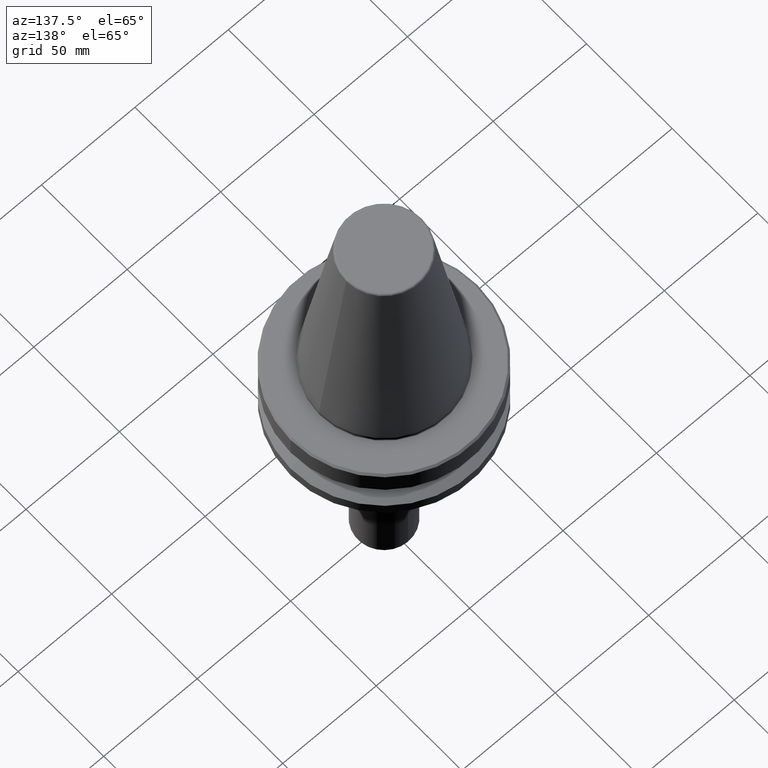
[diagram: clean part render]
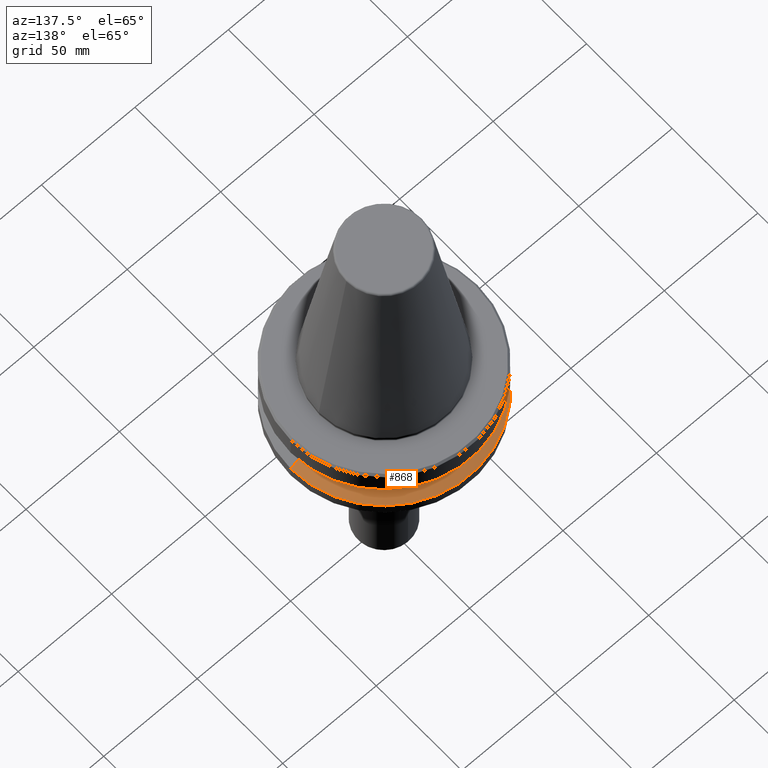
[diagram: same view with one face highlighted and labeled with its STEP entity id]
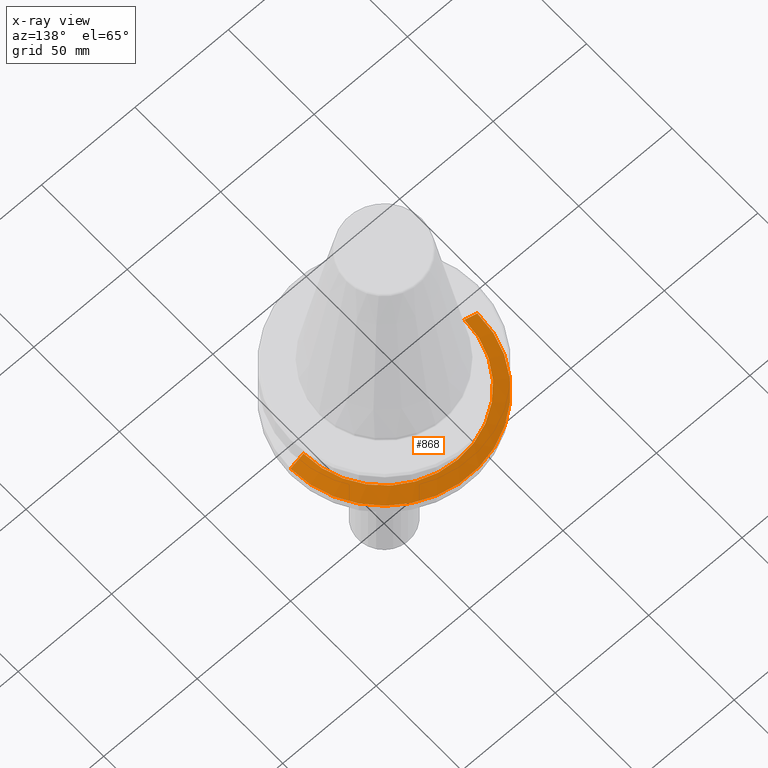
[diagram: x-ray of the same camera — body ghosted, the highlighted face saturated]
A machine part, auxiliary view. The second image highlights one B-rep face of the part: STEP entity #868.
The next image is the same camera in x-ray: the body ghosted, the highlighted face saturated — about 0% of this face is hidden behind the body in this view.
In plain terms, the highlighted conical surface has half-angle 60 deg.
Its self-contained STEP definition (entity closure, byte-faithful):
#40 = ORIENTED_EDGE ( 'NONE', *, *, #54, .T. ) ;
#47 = DIRECTION ( 'NONE',  ( 0.8660254037844396000, 1.060575238724908000E-016, -0.4999999999999983900 ) ) ;
#54 = EDGE_CURVE ( 'NONE', #441, #79, #1120, .T. ) ;
#79 = VERTEX_POINT ( 'NONE', #959 ) ;
#193 = CARTESIAN_POINT ( 'NONE',  ( 43.07217782649103600, 5.699027233244276000E-015, -26.70000000000000300 ) ) ;
#280 = DIRECTION ( 'NONE',  ( -0.0000000000000000000, -0.0000000000000000000, 1.000000000000000000 ) ) ;
#291 = EDGE_LOOP ( 'NONE', ( #951, #622, #40, #1129 ) ) ;
#307 = DIRECTION ( 'NONE',  ( -0.0000000000000000000, -0.0000000000000000000, 1.000000000000000000 ) ) ;
#384 = CARTESIAN_POINT ( 'NONE',  ( 43.07217782649103600, 5.274820470751785100E-015, -26.70000000000000300 ) ) ;
#430 = VECTOR ( 'NONE', #47, 1000.000000000000000 ) ;
#441 = VERTEX_POINT ( 'NONE', #871 ) ;
#558 = CONICAL_SURFACE ( 'NONE', #723, 43.07217782649103600, 1.047197551196599600 ) ;
#603 = EDGE_CURVE ( 'NONE', #862, #79, #999, .T. ) ;
#615 = EDGE_CURVE ( 'NONE', #1073, #441, #953, .T. ) ;
#622 = ORIENTED_EDGE ( 'NONE', *, *, #615, .T. ) ;
#723 = AXIS2_PLACEMENT_3D ( 'NONE', #1035, #946, #1044 ) ;
#797 = CIRCLE ( 'NONE', #979, 43.07217782649103600 ) ;
#798 = FACE_OUTER_BOUND ( 'NONE', #291, .T. ) ;
#802 = CARTESIAN_POINT ( 'NONE',  ( -43.07217782649103600, 0.0000000000000000000, -26.70000000000000300 ) ) ;
#823 = AXIS2_PLACEMENT_3D ( 'NONE', #828, #280, #923 ) ;
#828 = CARTESIAN_POINT ( 'NONE',  ( 0.0000000000000000000, 0.0000000000000000000, -30.69977999677324500 ) ) ;
#855 = CARTESIAN_POINT ( 'NONE',  ( -43.07217782649103600, 0.0000000000000000000, -26.70000000000000300 ) ) ;
#858 = CARTESIAN_POINT ( 'NONE',  ( 0.0000000000000000000, 0.0000000000000000000, -26.70000000000000300 ) ) ;
#862 = VERTEX_POINT ( 'NONE', #855 ) ;
#868 = ADVANCED_FACE ( 'NONE', ( #798 ), #558, .T. ) ;
#871 = CARTESIAN_POINT ( 'NONE',  ( 50.00000000000000000, 0.0000000000000000000, -30.69977999677324500 ) ) ;
#913 = EDGE_CURVE ( 'NONE', #1073, #862, #797, .T. ) ;
#923 = DIRECTION ( 'NONE',  ( 1.000000000000000000, 0.0000000000000000000, 0.0000000000000000000 ) ) ;
#946 = DIRECTION ( 'NONE',  ( 0.0000000000000000000, 0.0000000000000000000, -1.000000000000000000 ) ) ;
#949 = DIRECTION ( 'NONE',  ( 1.000000000000000000, 0.0000000000000000000, 0.0000000000000000000 ) ) ;
#951 = ORIENTED_EDGE ( 'NONE', *, *, #913, .F. ) ;
#953 = LINE ( 'NONE', #384, #430 ) ;
#959 = CARTESIAN_POINT ( 'NONE',  ( -50.00000000000000000, 6.123233995736766100E-015, -30.69977999677324500 ) ) ;
#979 = AXIS2_PLACEMENT_3D ( 'NONE', #858, #307, #949 ) ;
#999 = LINE ( 'NONE', #802, #1043 ) ;
#1033 = DIRECTION ( 'NONE',  ( -0.8660254037844396000, 0.0000000000000000000, -0.4999999999999983900 ) ) ;
#1035 = CARTESIAN_POINT ( 'NONE',  ( 0.0000000000000000000, 0.0000000000000000000, -26.70000000000000300 ) ) ;
#1043 = VECTOR ( 'NONE', #1033, 1000.000000000000000 ) ;
#1044 = DIRECTION ( 'NONE',  ( -1.000000000000000000, 0.0000000000000000000, 0.0000000000000000000 ) ) ;
#1073 = VERTEX_POINT ( 'NONE', #193 ) ;
#1120 = CIRCLE ( 'NONE', #823, 50.00000000000000000 ) ;
#1129 = ORIENTED_EDGE ( 'NONE', *, *, #603, .F. ) ;